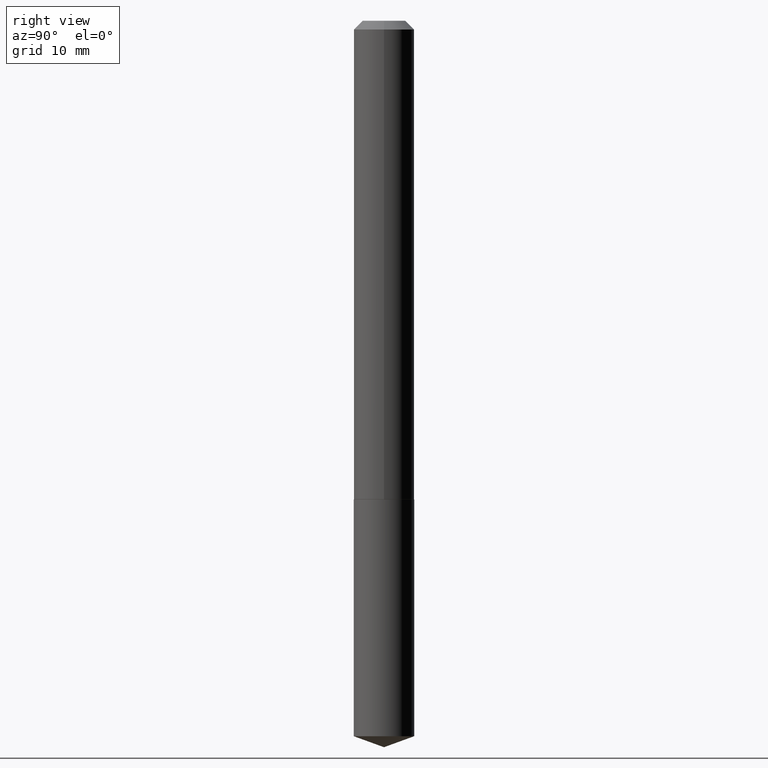
[diagram: clean part render]
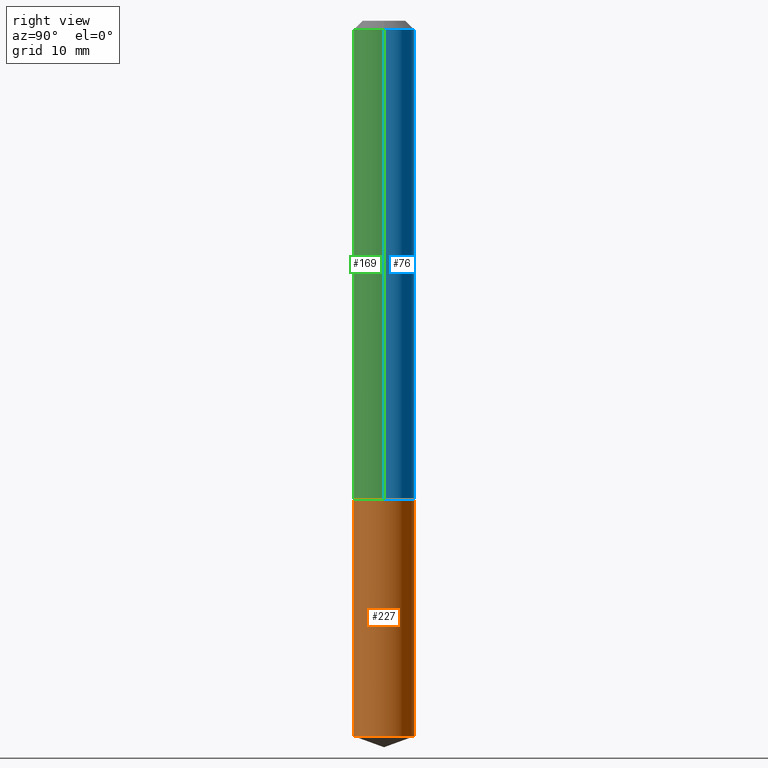
[diagram: same view with three faces highlighted in distinct colors, each labeled with its STEP entity id]
A machine part, right view with three faces highlighted in distinct colors.
Their STEP definitions:

[orange] entity #227 — the highlighted cylindrical surface (edge-blend (fillet) strip) has radius 2.7495 mm, axis along (-0, 0, 1).
#27 = CARTESIAN_POINT ( 'NONE',  ( 4.187865330592046310E-29, -5.979161792768886381E-15, -1.712499999999999911 ) ) ;
#49 = DIRECTION ( 'NONE',  ( -6.982962677686265922E-15, -1.000000000000000000, 5.047294214622195629E-15 ) ) ;
#50 = AXIS2_PLACEMENT_3D ( 'NONE', #343, #250, #49 ) ;
#59 = ORIENTED_EDGE ( 'NONE', *, *, #61, .T. ) ;
#61 = EDGE_CURVE ( 'NONE', #330, #198, #139, .T. ) ;
#65 = CARTESIAN_POINT ( 'NONE',  ( -7.559057098594963527E-16, -0.1082500000000059803, -1.712499999999999467 ) ) ;
#70 = CARTESIAN_POINT ( 'NONE',  ( -7.559057098594963527E-16, -0.1082500000000059803, -1.712499999999999467 ) ) ;
#73 = LINE ( 'NONE', #102, #305 ) ;
#78 = VECTOR ( 'NONE', #85, 39.37007874015748143 ) ;
#85 = DIRECTION ( 'NONE',  ( -2.446104833064120816E-29, 3.490570512152038331E-15, 1.000000000000000000 ) ) ;
#95 = CARTESIAN_POINT ( 'NONE',  ( 7.691625114603710599E-16, 0.1082499999999940177, -1.712500000000000133 ) ) ;
#102 = CARTESIAN_POINT ( 'NONE',  ( 7.691625114603501551E-16, 0.1082499999999940177, -1.712500000000000133 ) ) ;
#115 = VERTEX_POINT ( 'NONE', #95 ) ;
#117 = LINE ( 'NONE', #65, #78 ) ;
#125 = EDGE_LOOP ( 'NONE', ( #59, #232, #295, #260 ) ) ;
#128 = CARTESIAN_POINT ( 'NONE',  ( 4.187865330592046310E-29, -5.979161792768886381E-15, -1.712499999999999911 ) ) ;
#139 = CIRCLE ( 'NONE', #50, 0.1082499999999999990 ) ;
#141 = DIRECTION ( 'NONE',  ( -6.982962677686265922E-15, -1.000000000000000000, 2.523647107311097814E-15 ) ) ;
#165 = DIRECTION ( 'NONE',  ( -2.446104833064120816E-29, 3.490570512152038331E-15, 1.000000000000000000 ) ) ;
#167 = AXIS2_PLACEMENT_3D ( 'NONE', #128, #319, #243 ) ;
#176 = VERTEX_POINT ( 'NONE', #70 ) ;
#191 = CARTESIAN_POINT ( 'NONE',  ( 7.691625114603707641E-16, 0.1082499999999910478, -2.559000222140684233 ) ) ;
#196 = CYLINDRICAL_SURFACE ( 'NONE', #167, 0.1082499999999999990 ) ;
#198 = VERTEX_POINT ( 'NONE', #191 ) ;
#208 = EDGE_CURVE ( 'NONE', #198, #115, #73, .T. ) ;
#223 = CARTESIAN_POINT ( 'NONE',  ( -7.559057098594756451E-16, -0.1082500000000089085, -2.559000222140683345 ) ) ;
#227 = ADVANCED_FACE ( 'NONE', ( #278 ), #196, .T. ) ;
#232 = ORIENTED_EDGE ( 'NONE', *, *, #208, .T. ) ;
#243 = DIRECTION ( 'NONE',  ( -6.982962677686265922E-15, -1.000000000000000000, 2.523647107311097814E-15 ) ) ;
#250 = DIRECTION ( 'NONE',  ( -2.446104833064120816E-29, 3.490570512152038331E-15, 1.000000000000000000 ) ) ;
#256 = AXIS2_PLACEMENT_3D ( 'NONE', #27, #286, #141 ) ;
#260 = ORIENTED_EDGE ( 'NONE', *, *, #374, .F. ) ;
#278 = FACE_OUTER_BOUND ( 'NONE', #125, .T. ) ;
#286 = DIRECTION ( 'NONE',  ( -2.446104833064120816E-29, 3.490570512152038331E-15, 1.000000000000000000 ) ) ;
#295 = ORIENTED_EDGE ( 'NONE', *, *, #314, .F. ) ;
#305 = VECTOR ( 'NONE', #165, 39.37007874015748143 ) ;
#314 = EDGE_CURVE ( 'NONE', #176, #115, #350, .T. ) ;
#319 = DIRECTION ( 'NONE',  ( -2.446104833064120816E-29, 3.490570512152038331E-15, 1.000000000000000000 ) ) ;
#330 = VERTEX_POINT ( 'NONE', #223 ) ;
#343 = CARTESIAN_POINT ( 'NONE',  ( 6.258493615160226156E-29, -8.933930506703307984E-15, -2.559000222140683789 ) ) ;
#350 = CIRCLE ( 'NONE', #256, 0.1082499999999999990 ) ;
#374 = EDGE_CURVE ( 'NONE', #330, #176, #117, .T. ) ;

[blue] entity #76 — the highlighted cylindrical surface (edge-blend (fillet) strip) has radius 2.7496 mm, axis along (-0, 0, 1).
#3 = VERTEX_POINT ( 'NONE', #166 ) ;
#6 = CARTESIAN_POINT ( 'NONE',  ( -0.1082499999999999990, -2.274099910508846080E-15, -0.03125000000000021511 ) ) ;
#11 = VERTEX_POINT ( 'NONE', #194 ) ;
#15 = CIRCLE ( 'NONE', #120, 0.1082499999999999990 ) ;
#51 = CIRCLE ( 'NONE', #231, 0.1082500000000002349 ) ;
#55 = EDGE_LOOP ( 'NONE', ( #177, #206, #180, #88 ) ) ;
#76 = ADVANCED_FACE ( 'NONE', ( #310 ), #159, .T. ) ;
#88 = ORIENTED_EDGE ( 'NONE', *, *, #158, .F. ) ;
#109 = DIRECTION ( 'NONE',  ( 1.000000000000000000, -6.982962677686266711E-15, 0.000000000000000000 ) ) ;
#120 = AXIS2_PLACEMENT_3D ( 'NONE', #384, #386, #109 ) ;
#143 = LINE ( 'NONE', #170, #204 ) ;
#158 = EDGE_CURVE ( 'NONE', #3, #11, #143, .T. ) ;
#159 = CYLINDRICAL_SURFACE ( 'NONE', #299, 0.1082500000000001239 ) ;
#166 = CARTESIAN_POINT ( 'NONE',  ( 0.1082500000000002349, -6.733321761959005111E-15, -1.711999999999999966 ) ) ;
#170 = CARTESIAN_POINT ( 'NONE',  ( 0.1082500000000001239, -7.559057098595392471E-16, 5.278461359799106297E-30 ) ) ;
#177 = ORIENTED_EDGE ( 'NONE', *, *, #327, .T. ) ;
#180 = ORIENTED_EDGE ( 'NONE', *, *, #345, .F. ) ;
#194 = CARTESIAN_POINT ( 'NONE',  ( 0.1082499999999999990, -8.650145016983874602E-16, -0.03125000000000021511 ) ) ;
#202 = CARTESIAN_POINT ( 'NONE',  ( -0.1082500000000001239, 7.691625114603093316E-16, -5.324747235200940914E-30 ) ) ;
#204 = VECTOR ( 'NONE', #293, 39.37007874015748143 ) ;
#206 = ORIENTED_EDGE ( 'NONE', *, *, #337, .T. ) ;
#231 = AXIS2_PLACEMENT_3D ( 'NONE', #259, #257, #388 ) ;
#235 = VECTOR ( 'NONE', #289, 39.37007874015748143 ) ;
#253 = LINE ( 'NONE', #202, #235 ) ;
#257 = DIRECTION ( 'NONE',  ( -2.445468806185136597E-29, 3.491481338843145583E-15, 1.000000000000000000 ) ) ;
#258 = VERTEX_POINT ( 'NONE', #344 ) ;
#259 = CARTESIAN_POINT ( 'NONE',  ( 4.186642596188953508E-29, -5.977416052099464878E-15, -1.711999999999999966 ) ) ;
#277 = CARTESIAN_POINT ( 'NONE',  ( 0.000000000000000000, 0.000000000000000000, 0.000000000000000000 ) ) ;
#279 = DIRECTION ( 'NONE',  ( 1.000000000000000000, -6.982962677686266711E-15, 4.876176775795935793E-29 ) ) ;
#289 = DIRECTION ( 'NONE',  ( -2.445468806185136877E-29, 3.491481338843145188E-15, 1.000000000000000000 ) ) ;
#293 = DIRECTION ( 'NONE',  ( -2.445468806185136877E-29, 3.491481338843145188E-15, 1.000000000000000000 ) ) ;
#299 = AXIS2_PLACEMENT_3D ( 'NONE', #277, #318, #279 ) ;
#310 = FACE_OUTER_BOUND ( 'NONE', #55, .T. ) ;
#318 = DIRECTION ( 'NONE',  ( -2.445468806185136597E-29, 3.491481338843145583E-15, 1.000000000000000000 ) ) ;
#327 = EDGE_CURVE ( 'NONE', #3, #258, #51, .T. ) ;
#337 = EDGE_CURVE ( 'NONE', #258, #369, #253, .T. ) ;
#344 = CARTESIAN_POINT ( 'NONE',  ( -0.1082500000000002349, -5.208253540639154363E-15, -1.711999999999999966 ) ) ;
#345 = EDGE_CURVE ( 'NONE', #11, #369, #15, .T. ) ;
#369 = VERTEX_POINT ( 'NONE', #6 ) ;
#384 = CARTESIAN_POINT ( 'NONE',  ( 7.642090019328604414E-31, -1.091087918388490513E-16, -0.03125000000000021511 ) ) ;
#386 = DIRECTION ( 'NONE',  ( -2.445468806185136597E-29, 3.491481338843145583E-15, 1.000000000000000000 ) ) ;
#388 = DIRECTION ( 'NONE',  ( 1.000000000000000000, -6.982962677686270655E-15, 0.000000000000000000 ) ) ;

[green] entity #169 — the highlighted cylindrical surface (edge-blend (fillet) strip) has radius 2.7496 mm, axis along (-0, 0, 1).
#1 = CIRCLE ( 'NONE', #153, 0.1082499999999999990 ) ;
#3 = VERTEX_POINT ( 'NONE', #166 ) ;
#6 = CARTESIAN_POINT ( 'NONE',  ( -0.1082499999999999990, -2.274099910508846080E-15, -0.03125000000000021511 ) ) ;
#11 = VERTEX_POINT ( 'NONE', #194 ) ;
#25 = AXIS2_PLACEMENT_3D ( 'NONE', #42, #160, #283 ) ;
#32 = ORIENTED_EDGE ( 'NONE', *, *, #337, .F. ) ;
#38 = DIRECTION ( 'NONE',  ( 1.000000000000000000, -6.982962677686266711E-15, 4.876176775795935793E-29 ) ) ;
#42 = CARTESIAN_POINT ( 'NONE',  ( 4.186642596188953508E-29, -5.977416052099464878E-15, -1.711999999999999966 ) ) ;
#56 = EDGE_CURVE ( 'NONE', #369, #11, #1, .T. ) ;
#83 = EDGE_LOOP ( 'NONE', ( #32, #334, #203, #336 ) ) ;
#135 = DIRECTION ( 'NONE',  ( -2.445468806185136597E-29, 3.491481338843145583E-15, 1.000000000000000000 ) ) ;
#143 = LINE ( 'NONE', #170, #204 ) ;
#153 = AXIS2_PLACEMENT_3D ( 'NONE', #372, #381, #190 ) ;
#157 = CYLINDRICAL_SURFACE ( 'NONE', #316, 0.1082500000000001239 ) ;
#158 = EDGE_CURVE ( 'NONE', #3, #11, #143, .T. ) ;
#160 = DIRECTION ( 'NONE',  ( -2.445468806185136597E-29, 3.491481338843145583E-15, 1.000000000000000000 ) ) ;
#166 = CARTESIAN_POINT ( 'NONE',  ( 0.1082500000000002349, -6.733321761959005111E-15, -1.711999999999999966 ) ) ;
#169 = ADVANCED_FACE ( 'NONE', ( #217 ), #157, .T. ) ;
#170 = CARTESIAN_POINT ( 'NONE',  ( 0.1082500000000001239, -7.559057098595392471E-16, 5.278461359799106297E-30 ) ) ;
#190 = DIRECTION ( 'NONE',  ( 1.000000000000000000, -6.982962677686266711E-15, 0.000000000000000000 ) ) ;
#194 = CARTESIAN_POINT ( 'NONE',  ( 0.1082499999999999990, -8.650145016983874602E-16, -0.03125000000000021511 ) ) ;
#195 = CIRCLE ( 'NONE', #25, 0.1082500000000002349 ) ;
#202 = CARTESIAN_POINT ( 'NONE',  ( -0.1082500000000001239, 7.691625114603093316E-16, -5.324747235200940914E-30 ) ) ;
#203 = ORIENTED_EDGE ( 'NONE', *, *, #158, .T. ) ;
#204 = VECTOR ( 'NONE', #293, 39.37007874015748143 ) ;
#217 = FACE_OUTER_BOUND ( 'NONE', #83, .T. ) ;
#224 = EDGE_CURVE ( 'NONE', #258, #3, #195, .T. ) ;
#235 = VECTOR ( 'NONE', #289, 39.37007874015748143 ) ;
#253 = LINE ( 'NONE', #202, #235 ) ;
#258 = VERTEX_POINT ( 'NONE', #344 ) ;
#283 = DIRECTION ( 'NONE',  ( 1.000000000000000000, -6.982962677686270655E-15, 0.000000000000000000 ) ) ;
#289 = DIRECTION ( 'NONE',  ( -2.445468806185136877E-29, 3.491481338843145188E-15, 1.000000000000000000 ) ) ;
#293 = DIRECTION ( 'NONE',  ( -2.445468806185136877E-29, 3.491481338843145188E-15, 1.000000000000000000 ) ) ;
#316 = AXIS2_PLACEMENT_3D ( 'NONE', #347, #135, #38 ) ;
#334 = ORIENTED_EDGE ( 'NONE', *, *, #224, .T. ) ;
#336 = ORIENTED_EDGE ( 'NONE', *, *, #56, .F. ) ;
#337 = EDGE_CURVE ( 'NONE', #258, #369, #253, .T. ) ;
#344 = CARTESIAN_POINT ( 'NONE',  ( -0.1082500000000002349, -5.208253540639154363E-15, -1.711999999999999966 ) ) ;
#347 = CARTESIAN_POINT ( 'NONE',  ( 0.000000000000000000, 0.000000000000000000, 0.000000000000000000 ) ) ;
#369 = VERTEX_POINT ( 'NONE', #6 ) ;
#372 = CARTESIAN_POINT ( 'NONE',  ( 7.642090019328604414E-31, -1.091087918388490513E-16, -0.03125000000000021511 ) ) ;
#381 = DIRECTION ( 'NONE',  ( -2.445468806185136597E-29, 3.491481338843145583E-15, 1.000000000000000000 ) ) ;